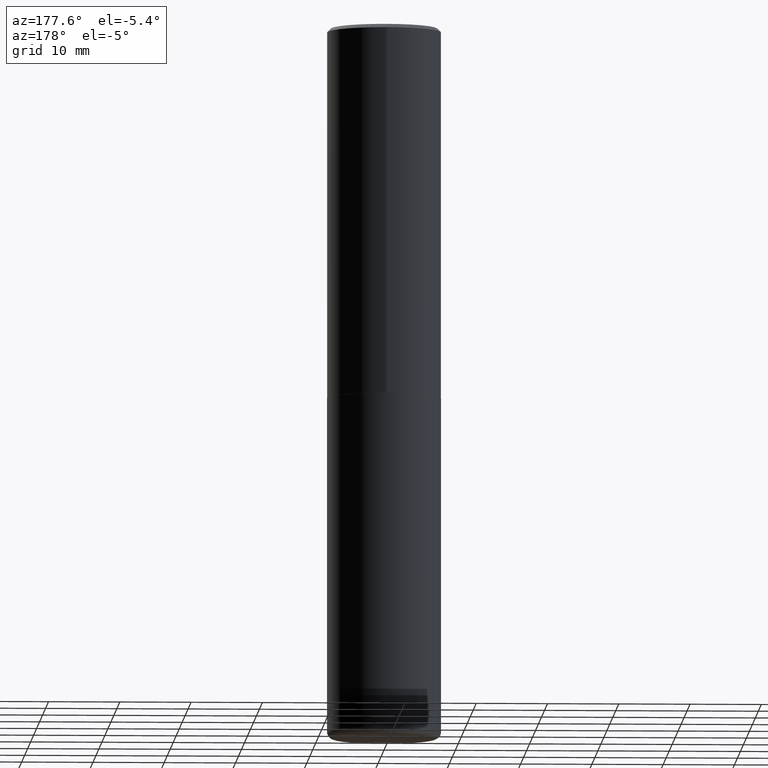
[diagram: clean part render]
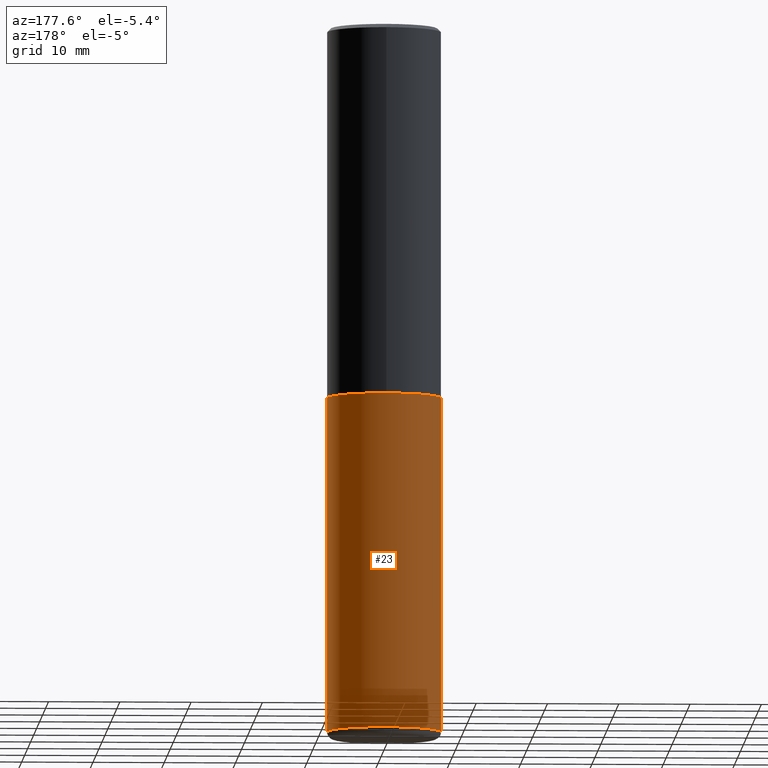
[diagram: same view with one face highlighted and labeled with its STEP entity id]
A machine part, auxiliary view. The second image highlights one B-rep face of the part: STEP entity #23.
In plain terms, the highlighted cylindrical surface (partial cylindrical patch) has radius 7.9997 mm, axis along (-0, 0, 1).
Its self-contained STEP definition (entity closure, byte-faithful):
#22 = ORIENTED_EDGE ( 'NONE', *, *, #136, .T. ) ;
#23 = ADVANCED_FACE ( 'NONE', ( #285 ), #263, .T. ) ;
#33 = ORIENTED_EDGE ( 'NONE', *, *, #402, .T. ) ;
#37 = DIRECTION ( 'NONE',  ( -2.445468806185136597E-29, 3.491481338843145583E-15, 1.000000000000000000 ) ) ;
#47 = CARTESIAN_POINT ( 'NONE',  ( 5.006363740022212801E-29, -7.147760596879689780E-15, -2.047200000000000575 ) ) ;
#62 = DIRECTION ( 'NONE',  ( 1.000000000000000000, -6.982962677686266711E-15, 4.876176775795936353E-29 ) ) ;
#73 = CARTESIAN_POINT ( 'NONE',  ( 0.3149500000000000077, -1.580768176161233565E-14, -3.897600000000000176 ) ) ;
#80 = VERTEX_POINT ( 'NONE', #153 ) ;
#90 = DIRECTION ( 'NONE',  ( -2.445468806185136597E-29, 3.491481338843145583E-15, 1.000000000000000000 ) ) ;
#119 = DIRECTION ( 'NONE',  ( 1.000000000000000000, -6.982962677686264344E-15, 0.000000000000000000 ) ) ;
#136 = EDGE_CURVE ( 'NONE', #241, #297, #327, .T. ) ;
#149 = AXIS2_PLACEMENT_3D ( 'NONE', #282, #386, #119 ) ;
#153 = CARTESIAN_POINT ( 'NONE',  ( 0.3149500000000000077, -9.347044692216979650E-15, -2.047200000000000575 ) ) ;
#159 = CARTESIAN_POINT ( 'NONE',  ( -0.3149500000000000077, -8.140224785300930216E-15, -2.047200000000000575 ) ) ;
#166 = LINE ( 'NONE', #284, #355 ) ;
#182 = CARTESIAN_POINT ( 'NONE',  ( 0.3149500000000000077, -2.199284095337289871E-15, 1.535751875536930130E-29 ) ) ;
#207 = ORIENTED_EDGE ( 'NONE', *, *, #329, .F. ) ;
#212 = ORIENTED_EDGE ( 'NONE', *, *, #335, .F. ) ;
#220 = CARTESIAN_POINT ( 'NONE',  ( 0.000000000000000000, 0.000000000000000000, 0.000000000000000000 ) ) ;
#241 = VERTEX_POINT ( 'NONE', #73 ) ;
#245 = VECTOR ( 'NONE', #310, 39.37007874015748143 ) ;
#248 = LINE ( 'NONE', #182, #245 ) ;
#263 = CYLINDRICAL_SURFACE ( 'NONE', #354, 0.3149500000000000077 ) ;
#278 = CIRCLE ( 'NONE', #291, 0.3149500000000000077 ) ;
#282 = CARTESIAN_POINT ( 'NONE',  ( 9.531459218987189074E-29, -1.360839766627504420E-14, -3.897600000000000176 ) ) ;
#284 = CARTESIAN_POINT ( 'NONE',  ( -0.3149500000000000077, 2.237854346276435590E-15, -1.549218606675782676E-29 ) ) ;
#285 = FACE_OUTER_BOUND ( 'NONE', #334, .T. ) ;
#291 = AXIS2_PLACEMENT_3D ( 'NONE', #47, #90, #342 ) ;
#297 = VERTEX_POINT ( 'NONE', #315 ) ;
#301 = VERTEX_POINT ( 'NONE', #159 ) ;
#310 = DIRECTION ( 'NONE',  ( -2.445468806185136877E-29, 3.491481338843145188E-15, 1.000000000000000000 ) ) ;
#315 = CARTESIAN_POINT ( 'NONE',  ( -0.3149500000000000077, -1.137054331999860664E-14, -3.897600000000000176 ) ) ;
#327 = CIRCLE ( 'NONE', #149, 0.3149499999999999522 ) ;
#329 = EDGE_CURVE ( 'NONE', #80, #301, #278, .T. ) ;
#334 = EDGE_LOOP ( 'NONE', ( #22, #33, #207, #212 ) ) ;
#335 = EDGE_CURVE ( 'NONE', #241, #80, #248, .T. ) ;
#342 = DIRECTION ( 'NONE',  ( 1.000000000000000000, -6.982962677686266711E-15, 0.000000000000000000 ) ) ;
#354 = AXIS2_PLACEMENT_3D ( 'NONE', #220, #37, #62 ) ;
#355 = VECTOR ( 'NONE', #370, 39.37007874015748143 ) ;
#370 = DIRECTION ( 'NONE',  ( -2.445468806185136877E-29, 3.491481338843145188E-15, 1.000000000000000000 ) ) ;
#386 = DIRECTION ( 'NONE',  ( -2.445468806185136597E-29, 3.491481338843145583E-15, 1.000000000000000000 ) ) ;
#402 = EDGE_CURVE ( 'NONE', #297, #301, #166, .T. ) ;